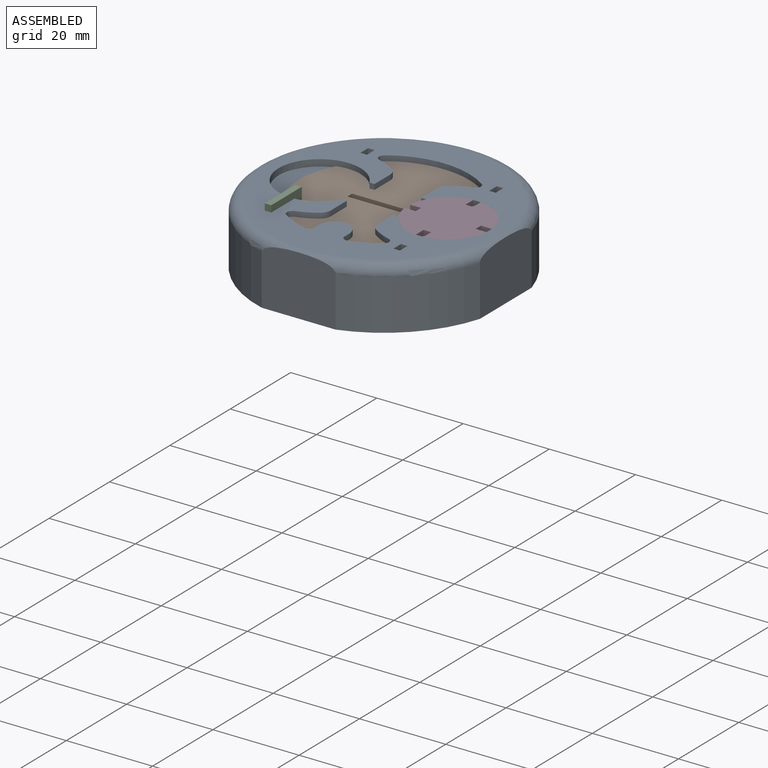
[diagram: assembled view]
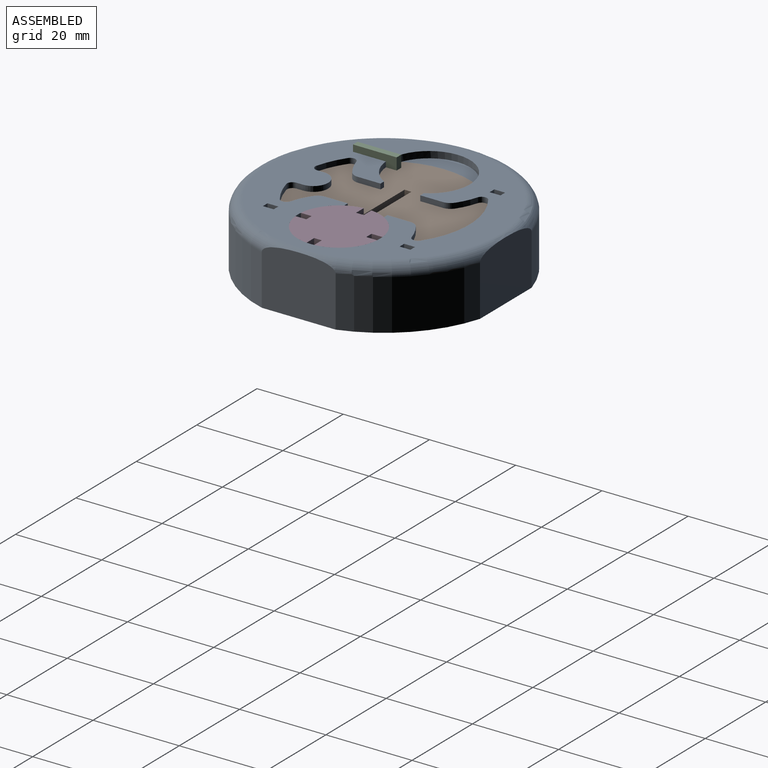
[diagram: assembled view, second angle]
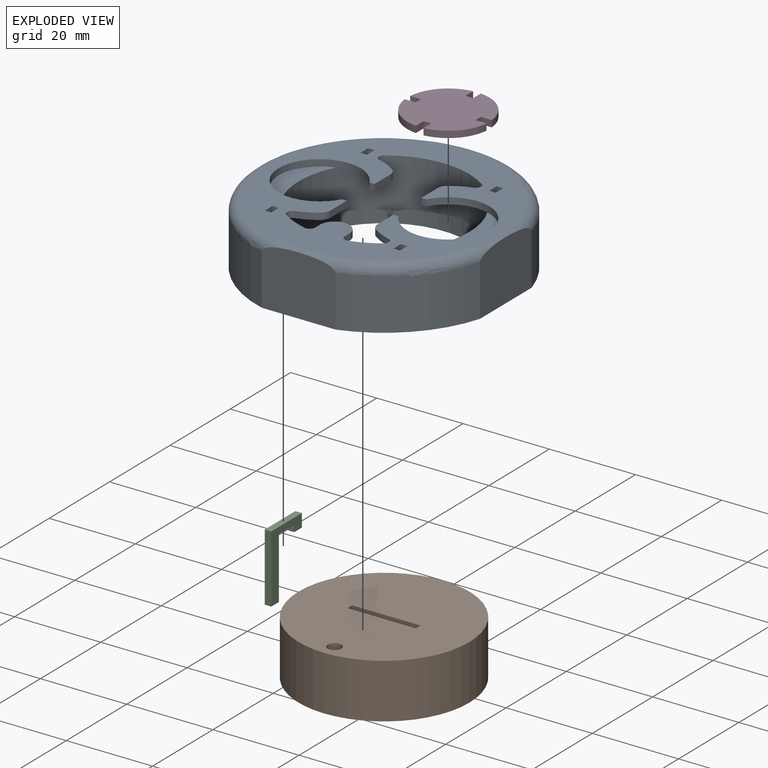
[diagram: exploded view]
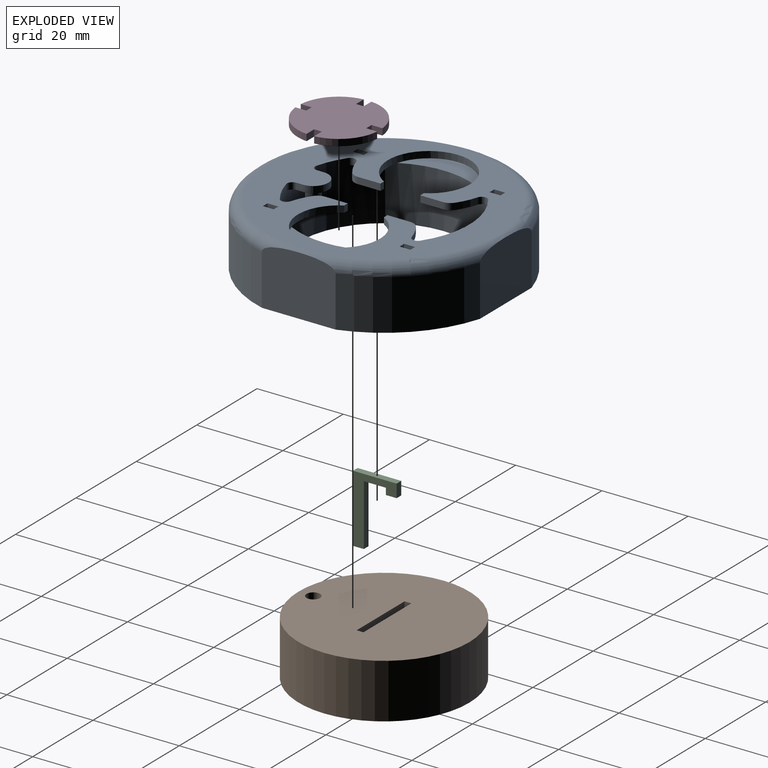
[diagram: exploded view, second angle]
ASSEMBLY  parts=4 mates=3
PART A: 64 faces, bbox 63.9x63.9x14.2 mm
  f0: plane 18.3x6.87mm, normal (0,0,1), area 65mm2, adj f22,f39
  f1: cylinder r=14.61mm len=14.22mm, axis (0,0,1), area 21.7mm2, adj f2,f25,f26,f49
  f2: plane 14.22x2.53mm, normal (-1,0,0), area 36mm2, adj f1,f3,f26,f49
  f3: plane 14.22x1.52mm, normal (0,1,0), area 21.7mm2, adj f2,f25,f26,f49
  f4: plane 14.22x2.53mm, normal (1,0,0), area 36mm2, adj f5,f20,f26,f49
  f5: cylinder r=14.61mm len=14.22mm, axis (0,0,1), area 21.7mm2, adj f4,f6,f26,f49
  f6: plane 14.22x2.53mm, normal (-1,0,0), area 36mm2, adj f5,f20,f26,f49
  f7: cylinder r=14.61mm len=14.22mm, axis (0,0,1), area 21.7mm2, adj f8,f21,f26,f49
  f8: plane 14.22x2.53mm, normal (1,0,0), area 36mm2, adj f7,f9,f26,f49
  f9: plane 14.22x1.52mm, normal (0,-1,0), area 21.7mm2, adj f8,f21,f26,f49
  f10: cylinder r=14.61mm len=14.22mm, axis (0,0,1), area 21.7mm2, adj f11,f23,f26,f49
  f11: plane 14.22x2.53mm, normal (1,0,0), area 36mm2, adj f10,f12,f26,f49
  f12: plane 14.22x1.52mm, normal (0,-1,0), area 21.7mm2, adj f11,f23,f26,f49
  f13: plane 17.14x13.89mm, normal (0,1,0), area 230.9mm2, adj f14,f24,f26,f57
  f14: cylinder r=29.53mm len=19.69mm, axis (0,0,1), area 338.8mm2, adj f13,f15,f26,f57
  f15: plane 17.14x13.89mm, normal (-1,0,0), area 230.9mm2, adj f14,f16,f26,f57
  f16: cylinder r=29.53mm len=19.69mm, axis (0,0,1), area 338.8mm2, adj f15,f17,f26,f57
  f17: plane 17.14x13.89mm, normal (0,-1,0), area 230.9mm2, adj f16,f18,f26,f57
  f18: cylinder r=29.53mm len=19.69mm, axis (0,0,1), area 338.8mm2, adj f17,f19,f26,f57
  f19: plane 17.14x13.89mm, normal (1,0,0), area 230.9mm2, adj f18,f24,f26,f57
  f20: plane 14.22x1.52mm, normal (0,1,0), area 21.7mm2, adj f4,f6,f26,f49
  f21: plane 14.22x2.53mm, normal (-1,0,0), area 36mm2, adj f7,f9,f26,f49
  f22: cylinder r=19.81mm len=39.62mm, axis (0,0,1), area 1638.5mm2, adj f0,f26,f27,f28,f29,f30,f31,f49
  f23: plane 14.22x2.53mm, normal (-1,0,0), area 36mm2, adj f10,f12,f26,f49
  f24: cylinder r=29.53mm len=19.69mm, axis (0,0,1), area 338.8mm2, adj f13,f19,f26,f57
  f25: plane 14.22x2.53mm, normal (1,0,0), area 36mm2, adj f1,f3,f26,f49
  f26: plane 56.52x56.52mm, normal (0,0,-1), area 1432.3mm2, adj f1,f2,f3,f4,f5,f6,f7,f8
  f27: plane 18.3x6.87mm, normal (0,0,1), area 65mm2, adj f22,f46
  f28: plane 12.14x11.7mm, normal (0,0,-1), area 60.4mm2, adj f22,f43,f44,f45,f46,f54,f59
  f29: plane 12.14x11.7mm, normal (0,0,-1), area 60.4mm2, adj f22,f39,f40,f41,f42,f55,f60
  f30: plane 12.14x11.7mm, normal (0,0,-1), area 60.4mm2, adj f22,f36,f37,f38,f39,f56,f61
  f31: plane 10.04x6.86mm, normal (0,0,-1), area 34.5mm2, adj f22,f33,f34,f35,f51,f62,f63
  f32: cylinder r=14.61mm len=4.38mm, axis (0,0,-1), area 7.4mm2, adj f49,f50,f53,f58
  f33: plane 1.55x1.52mm, normal (1,0,0), area 2.4mm2, adj f31,f34,f49,f62
  f34: cylinder r=3.43mm len=6.86mm, axis (0,0,-1), area 16.4mm2, adj f31,f33,f35,f49
  f35: plane 1.55x1.52mm, normal (-1,0,0), area 2.4mm2, adj f31,f34,f49,f63
  f36: cylinder r=14.61mm len=4.38mm, axis (0,0,-1), area 7.4mm2, adj f30,f49,f56,f61
  f37: plane 5.26x1.52mm, normal (1,0,0), area 8mm2, adj f30,f38,f49,f56
  f38: plane 1.52x1.15mm, normal (0,1,0), area 1.8mm2, adj f30,f37,f39,f49
  f39: cylinder r=9.53mm len=19.05mm, axis (0,0,-1), area 76.6mm2, adj f0,f29,f30,f38,f40,f49
  f40: plane 1.52x1.15mm, normal (0,-1,0), area 1.8mm2, adj f29,f39,f41,f49
  f41: plane 5.26x1.52mm, normal (1,0,0), area 8mm2, adj f29,f40,f49,f55
  f42: cylinder r=14.61mm len=4.38mm, axis (0,0,-1), area 7.4mm2, adj f29,f49,f55,f60
  f43: cylinder r=14.61mm len=4.38mm, axis (0,0,-1), area 7.4mm2, adj f28,f49,f54,f59
  f44: plane 5.26x1.52mm, normal (-1,0,0), area 8mm2, adj f28,f45,f49,f54
  f45: plane 1.52x1.15mm, normal (0,-1,0), area 1.8mm2, adj f28,f44,f46,f49
  f46: cylinder r=9.53mm len=19.05mm, axis (0,0,-1), area 76.6mm2, adj f27,f28,f45,f47,f49,f50
  f47: plane 1.52x1.15mm, normal (0,1,0), area 1.8mm2, adj f46,f48,f49,f50
  f48: plane 5.26x1.52mm, normal (-1,0,0), area 8mm2, adj f47,f49,f50,f53
  f49: plane 53.98x53.98mm, normal (0,0,1), area 1193.8mm2, adj f1,f2,f3,f4,f5,f6,f7,f8
  f50: plane 12.14x11.7mm, normal (0,0,-1), area 60.4mm2, adj f22,f32,f46,f47,f48,f53,f58
  f51: cylinder r=1.59mm len=3.18mm, axis (0,0,1), area 24.1mm2, adj f31,f52
  f52: plane 3.18x3.18mm, normal (0,0,-1), area 7.9mm2, adj f51
  f53: cylinder r=2.54mm len=2.08mm, axis (0,0,-1), area 3.7mm2, adj f32,f48,f49,f50
  f54: cylinder r=2.54mm len=2.08mm, axis (0,0,-1), area 3.7mm2, adj f28,f43,f44,f49
  f55: cylinder r=2.54mm len=2.08mm, axis (0,0,-1), area 3.7mm2, adj f29,f41,f42,f49
  f56: cylinder r=2.54mm len=2.08mm, axis (0,0,-1), area 3.7mm2, adj f30,f36,f37,f49
  f57: torus R=26.99mm, axis (0,0,1), area 574.4mm2, adj f13,f14,f15,f16,f17,f18,f19,f24
  f58: cylinder r=1.27mm len=2.27mm, axis (0,0,-1), area 4.4mm2, adj f22,f32,f49,f50
  f59: cylinder r=1.27mm len=2.27mm, axis (0,0,-1), area 4.4mm2, adj f22,f28,f43,f49
  f60: cylinder r=1.27mm len=2.27mm, axis (0,0,-1), area 4.4mm2, adj f22,f29,f42,f49
  f61: cylinder r=1.27mm len=2.27mm, axis (0,0,-1), area 4.4mm2, adj f22,f30,f36,f49
  f62: cylinder r=1.27mm len=1.59mm, axis (0,0,1), area 3.5mm2, adj f22,f31,f33,f49
  f63: cylinder r=1.27mm len=1.59mm, axis (0,0,1), area 3.5mm2, adj f22,f31,f35,f49
PART B: 9 faces, bbox 39.6x39.6x12.7 mm
  f0: plane 12.7x1.59mm, normal (1,0,0), area 20.2mm2, adj f1,f3,f5,f6
  f1: plane 15.88x12.7mm, normal (0,-1,0), area 201.6mm2, adj f0,f2,f5,f6
  f2: plane 12.7x1.59mm, normal (-1,0,0), area 20.2mm2, adj f1,f3,f5,f6
  f3: plane 15.88x12.7mm, normal (0,1,0), area 201.6mm2, adj f0,f2,f5,f6
  f4: cylinder r=19.81mm len=39.62mm, axis (0,0,1), area 1580.9mm2, adj f5,f6
  f5: plane 39.62x39.62mm, normal (0,0,-1), area 1207.9mm2, adj f0,f1,f2,f3,f4
  f6: plane 39.62x39.62mm, normal (0,0,1), area 1200mm2, adj f0,f1,f2,f3,f4,f7
  f7: cylinder r=1.59mm len=3.18mm, axis (0,0,1), area 25.3mm2, adj f6,f8
  f8: plane 3.18x3.18mm, normal (0,0,1), area 7.9mm2, adj f7
PART C: 10 faces, bbox 1.5x10.1x15.7 mm
  f0: plane 15.75x10.13mm, normal (-1,0,0), area 55.2mm2, adj f1,f3,f4,f5,f6,f7,f8,f9
  f1: cylinder r=14.61mm len=14.22mm, axis (0,0,1), area 21.7mm2, adj f0,f2,f4,f7
  f2: plane 15.75x10.13mm, normal (1,0,0), area 55.2mm2, adj f1,f3,f4,f5,f6,f7,f8,f9
  f3: plane 15.75x1.52mm, normal (0,1,0), area 24mm2, adj f0,f2,f4,f5
  f4: plane 2.53x1.52mm, normal (0,0,-1), area 3.8mm2, adj f0,f1,f2,f3
  f5: plane 10.13x1.52mm, normal (0,0,1), area 15.4mm2, adj f0,f2,f3,f6
  f6: plane 3.05x1.52mm, normal (0,-1,0), area 4.6mm2, adj f0,f2,f5,f9
  f7: plane 5.11x1.52mm, normal (0,0,-1), area 7.7mm2, adj f0,f1,f2,f8
  f8: cylinder r=9.53mm len=1.52mm, axis (0,0,1), area 2.3mm2, adj f0,f2,f7,f9
  f9: plane 2.54x1.52mm, normal (0,0,-1), area 3.9mm2, adj f0,f2,f6,f8
PART D: 18 faces, bbox 19x19x1.5 mm
  f0: plane 1.78x1.52mm, normal (0,-1,0), area 2.7mm2, adj f1,f15,f16,f17
  f1: plane 2.54x1.52mm, normal (-1,0,0), area 3.9mm2, adj f0,f2,f16,f17
  f2: cylinder r=9.53mm len=8.6mm, axis (0,0,-1), area 20.1mm2, adj f1,f3,f16,f17
  f3: plane 2.54x1.52mm, normal (0,1,0), area 3.9mm2, adj f2,f4,f16,f17
  f4: plane 1.78x1.52mm, normal (1,0,0), area 2.7mm2, adj f3,f5,f16,f17
  f5: plane 2.54x1.52mm, normal (0,-1,0), area 3.9mm2, adj f4,f6,f16,f17
  f6: cylinder r=9.53mm len=8.6mm, axis (0,0,-1), area 20.1mm2, adj f5,f7,f16,f17
  f7: plane 2.54x1.52mm, normal (-1,0,0), area 3.9mm2, adj f6,f8,f16,f17
  f8: plane 1.78x1.52mm, normal (0,1,0), area 2.7mm2, adj f7,f9,f16,f17
  f9: plane 2.54x1.52mm, normal (1,0,0), area 3.9mm2, adj f8,f10,f16,f17
  f10: cylinder r=9.53mm len=8.6mm, axis (0,0,-1), area 20.1mm2, adj f9,f11,f16,f17
  f11: plane 2.54x1.52mm, normal (0,-1,0), area 3.9mm2, adj f10,f12,f16,f17
  f12: plane 1.78x1.52mm, normal (-1,0,0), area 2.7mm2, adj f11,f13,f16,f17
  f13: plane 2.54x1.52mm, normal (0,1,0), area 3.9mm2, adj f12,f14,f16,f17
  f14: cylinder r=9.53mm len=8.6mm, axis (0,0,-1), area 20.1mm2, adj f13,f15,f16,f17
  f15: plane 2.54x1.52mm, normal (1,0,0), area 3.9mm2, adj f0,f14,f16,f17
  f16: plane 18.97x18.97mm, normal (0,0,1), area 266.8mm2, adj f0,f1,f2,f3,f4,f5,f6,f7
  f17: plane 18.97x18.97mm, normal (0,0,-1), area 266.8mm2, adj f0,f1,f2,f3,f4,f5,f6,f7
PLACE A t=(-140.66,35.76,-26.9)mm
PLACE B t=(54.66,35.76,-26.6)mm fixed
PLACE C rot(axis=(0,0,-1),180deg) t=(142.58,35.76,-23.86)mm
PLACE D t=(127.79,48.29,-26.9)mm
MATE slider C.f4 <-> A.f26  axis (0,0,-1) through (40.5,18.64,-39.61)mm
MATE slider D.f2 <-> A.f46  axis (0,0,-1) through (69.58,35.76,-26.9)mm
MATE slider B.f7 <-> A.f34  axis (0,0,1) through (54.66,19.37,-29.14)mm
